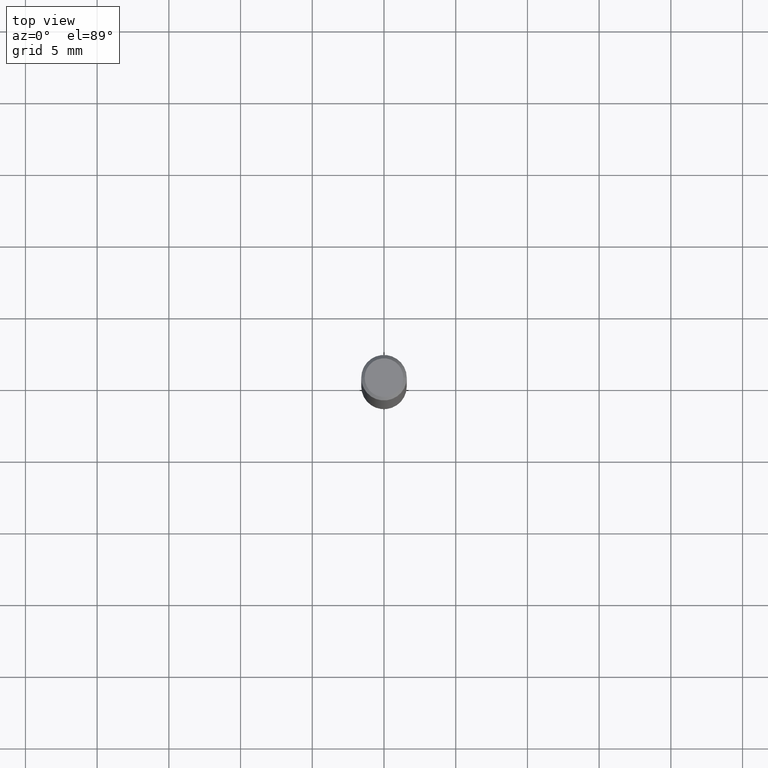
[diagram: clean part render]
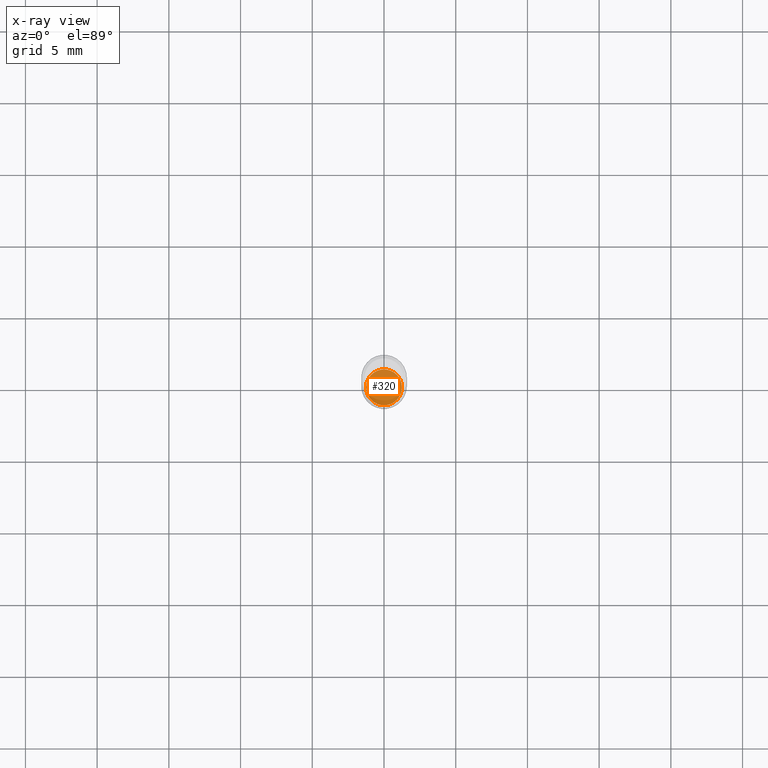
[diagram: x-ray — body ghosted, one internal face saturated and labeled with its STEP entity id]
A machine part, top view, then the same camera in x-ray: the body is ghosted and one INTERNAL B-rep face — a face not visible from any outside direction — is saturated and labeled: STEP entity #320.
In plain terms, the highlighted planar face has unit normal (-0, 0, 1).
Its self-contained STEP definition (entity closure, byte-faithful):
#4 = EDGE_CURVE ( 'NONE', #243, #82, #340, .T. ) ;
#28 = AXIS2_PLACEMENT_3D ( 'NONE', #172, #368, #360 ) ;
#41 = PLANE ( 'NONE',  #118 ) ;
#82 = VERTEX_POINT ( 'NONE', #219 ) ;
#83 = CARTESIAN_POINT ( 'NONE',  ( 3.758685555106554828E-29, -5.366406817801914963E-15, -1.536999999999999922 ) ) ;
#118 = AXIS2_PLACEMENT_3D ( 'NONE', #83, #417, #122 ) ;
#122 = DIRECTION ( 'NONE',  ( 1.000000000000000000, -6.982962677686265922E-15, 4.876176775795935793E-29 ) ) ;
#172 = CARTESIAN_POINT ( 'NONE',  ( 3.758685555106554828E-29, -5.366406817801914963E-15, -1.536999999999999922 ) ) ;
#203 = FACE_OUTER_BOUND ( 'NONE', #269, .T. ) ;
#219 = CARTESIAN_POINT ( 'NONE',  ( 0.04925000000000000211, -5.710317729677963788E-15, -1.536999999999999922 ) ) ;
#243 = VERTEX_POINT ( 'NONE', #277 ) ;
#269 = EDGE_LOOP ( 'NONE', ( #319, #276 ) ) ;
#275 = CARTESIAN_POINT ( 'NONE',  ( 3.758685555106554828E-29, -5.366406817801914963E-15, -1.536999999999999922 ) ) ;
#276 = ORIENTED_EDGE ( 'NONE', *, *, #4, .F. ) ;
#277 = CARTESIAN_POINT ( 'NONE',  ( -0.04925000000000000211, -5.013815293265955884E-15, -1.536999999999999922 ) ) ;
#293 = EDGE_CURVE ( 'NONE', #82, #243, #482, .T. ) ;
#319 = ORIENTED_EDGE ( 'NONE', *, *, #293, .F. ) ;
#320 = ADVANCED_FACE ( 'NONE', ( #203 ), #41, .F. ) ;
#340 = CIRCLE ( 'NONE', #28, 0.04925000000000000211 ) ;
#360 = DIRECTION ( 'NONE',  ( 1.000000000000000000, -6.982962677686268288E-15, 0.000000000000000000 ) ) ;
#368 = DIRECTION ( 'NONE',  ( -2.445468806185136597E-29, 3.491481338843145583E-15, 1.000000000000000000 ) ) ;
#382 = AXIS2_PLACEMENT_3D ( 'NONE', #275, #421, #387 ) ;
#387 = DIRECTION ( 'NONE',  ( 1.000000000000000000, -6.982962677686268288E-15, 0.000000000000000000 ) ) ;
#417 = DIRECTION ( 'NONE',  ( -2.438088387897960049E-29, 3.491481338843145188E-15, 1.000000000000000000 ) ) ;
#421 = DIRECTION ( 'NONE',  ( -2.445468806185136597E-29, 3.491481338843145583E-15, 1.000000000000000000 ) ) ;
#482 = CIRCLE ( 'NONE', #382, 0.04925000000000000211 ) ;